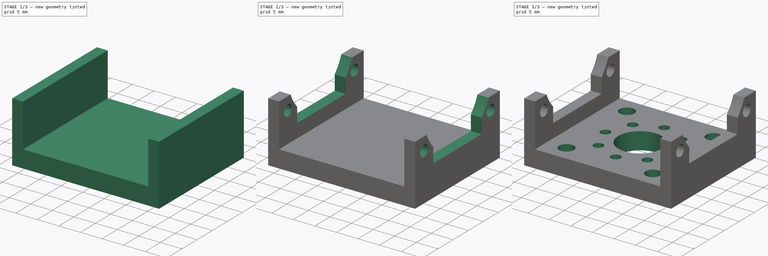
[diagram: build sequence overview — one tinted view per stage of 3, left to right]
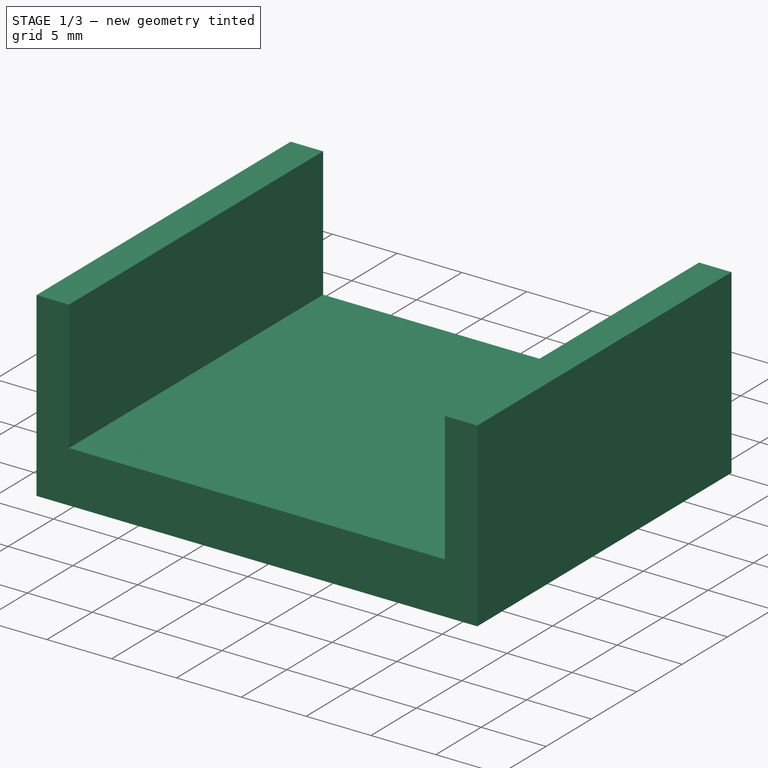
[diagram: stage 1 of 3 — iso view after this stage's code; geometry added in this stage tinted green]
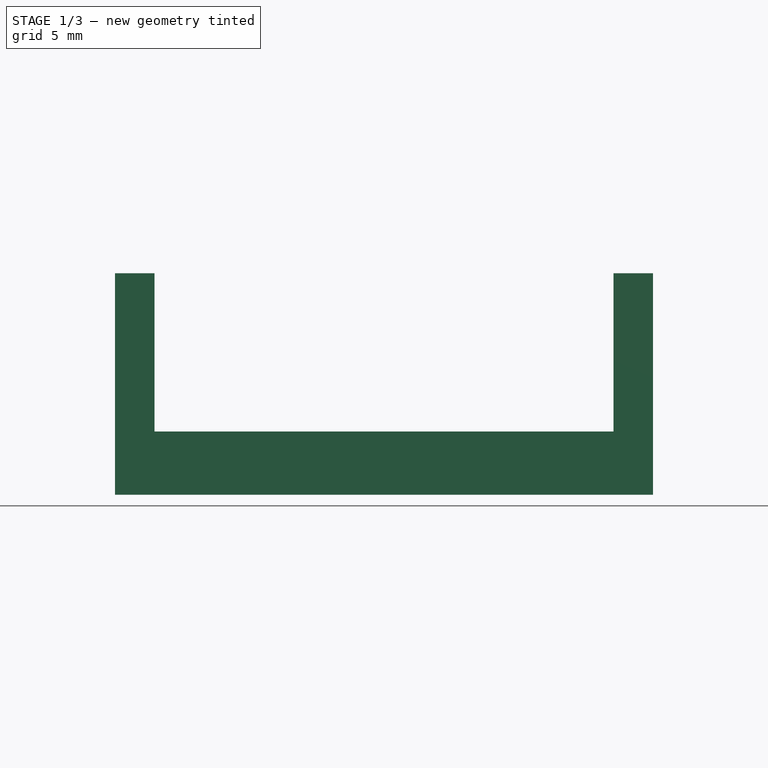
[diagram: stage 1 of 3 — front view after this stage's code; geometry added in this stage tinted green]
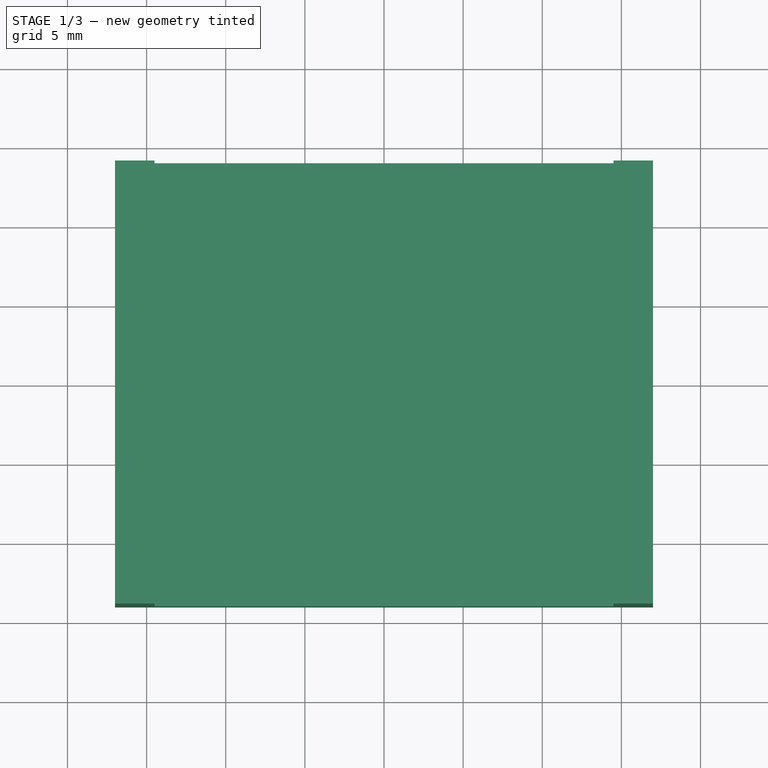
[diagram: stage 1 of 3 — top view after this stage's code; geometry added in this stage tinted green]
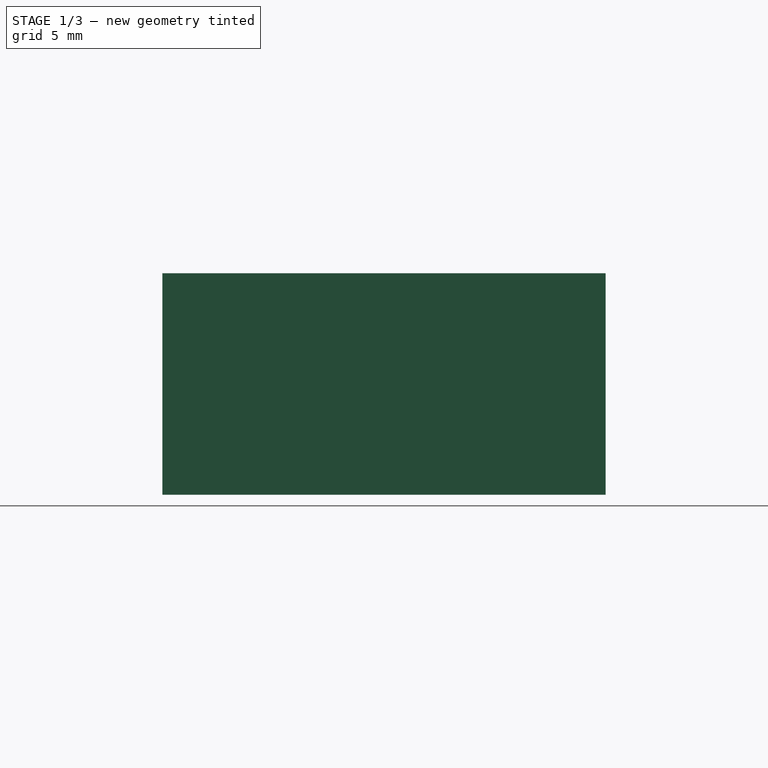
[diagram: stage 1 of 3 — right view after this stage's code; geometry added in this stage tinted green]
FCSTD DOCUMENT  (FreeCAD 0.21R33694 (Git))
Label: XL-430TTTT
License: All rights reserved
LicenseURL: http://en.wikipedia.org/wiki/All_rights_reserved
objects: Sketcher::SketchObject×6, PartDesign::Pocket×4, PartDesign::Pad×2, PartDesign::Body×1
note: 19 computed .brp shape members not serialized (recipe doc carries the construction recipe); baked Part::Feature solids carry a one-line shape summary decoded from their .brp

FEATURE [Sketcher::SketchObject] Sketch
  FullyConstrained = true
  MapMode = 5
  Support = -> [XY_Plane]
  sketch-geometry (4):
    g0: LineSegment StartX=-17 StartY=14 StartZ=0 EndX=-17 EndY=-14 EndZ=0
    g1: LineSegment StartX=17 StartY=-14 StartZ=0 EndX=-17 EndY=-14 EndZ=0
    g2: LineSegment StartX=-17 StartY=14 StartZ=0 EndX=17 EndY=14 EndZ=0
    g3: LineSegment StartX=17 StartY=14 StartZ=0 EndX=17 EndY=-14 EndZ=0
  constraints (12):
    c: Coincident(g1,g0)
    c: Horizontal(g1)
    c: Coincident(g2,g0)
    c: Horizontal(g2)
    c: Coincident(g3,g2)
    c: Coincident(g3,g1)
    c: Vertical(g0)
    c: Vertical(g3)
    c: DistanceX(g-1,g2) = 17
    c: DistanceX(g0,g-1) = 17
    c: DistanceY(g1,g-1) = 14
    c: DistanceY(g-1,g2) = 14
FEATURE [PartDesign::Pad] Pad
  Direction = (0,0,1)
  Length = 4
  Length2 = 10
  Profile = -> Sketch
  ReferenceAxis = -> Sketch [N_Axis]
  Type = 0
FEATURE [Sketcher::SketchObject] Sketch001
  FullyConstrained = true
  MapMode = 5
  Placement = pos=(0,0,4) rot=(0,0,1;0rad)
  Support = -> [Pad]
  sketch-geometry (8):
    g0: LineSegment StartX=17 StartY=-14 StartZ=0 EndX=14.5 EndY=-14 EndZ=0
    g1: LineSegment StartX=14.5 StartY=-14 StartZ=0 EndX=14.5 EndY=14 EndZ=0
    g2: LineSegment StartX=14.5 StartY=14 StartZ=0 EndX=17 EndY=14 EndZ=0
    g3: LineSegment StartX=17 StartY=14 StartZ=0 EndX=17 EndY=-14 EndZ=0
    g4: LineSegment StartX=-17 StartY=14 StartZ=0 EndX=-17 EndY=-14 EndZ=0
    g5: LineSegment StartX=-17 StartY=-14 StartZ=0 EndX=-14.5 EndY=-14 EndZ=0
    g6: LineSegment StartX=-14.5 StartY=-14 StartZ=0 EndX=-14.5 EndY=14 EndZ=0
    g7: LineSegment StartX=-14.5 StartY=14 StartZ=0 EndX=-17 EndY=14 EndZ=0
  constraints (24):
    c: Horizontal(g0)
    c: Coincident(g1,g0)
    c: Vertical(g1)
    c: Coincident(g2,g1)
    c: Horizontal(g2)
    c: Coincident(g3,g2)
    c: Coincident(g3,g0)
    c: Vertical(g3)
    c: Vertical(g4)
    c: Coincident(g5,g4)
    c: Horizontal(g5)
    c: Coincident(g6,g5)
    c: Vertical(g6)
    c: Coincident(g7,g6)
    c: Coincident(g7,g4)
    c: Horizontal(g7)
    c: DistanceX(g-1,g1) = 14.5
    c: DistanceX(g-1,g2) = 17
    c: DistanceY(g0,g-1) = 14
    c: DistanceY(g-1,g2) = 14
    c: DistanceY(g-1,g4) = 14
    c: DistanceY(g5,g-1) = 14
    c: DistanceX(g4,g-1) = 17
    c: DistanceX(g6,g-1) = 14.5
FEATURE [PartDesign::Pad] Pad001
  BaseFeature = -> Pad
  Direction = (0,0,1)
  Length = 10
  Length2 = 10
  Profile = -> Sketch001
  ReferenceAxis = -> Sketch001 [N_Axis]
  Type = 0
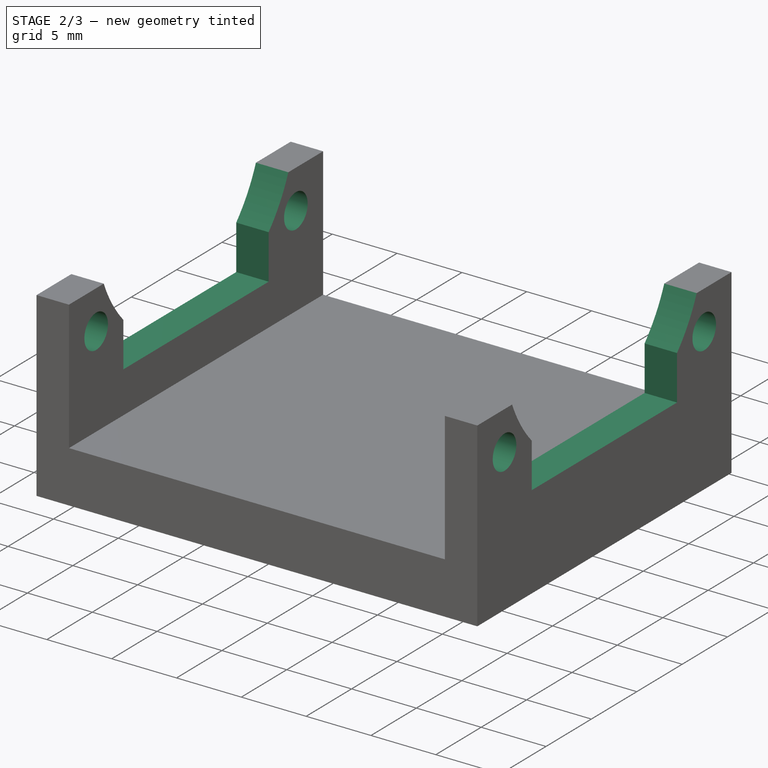
[diagram: stage 2 of 3 — iso view after this stage's code; geometry added in this stage tinted green]
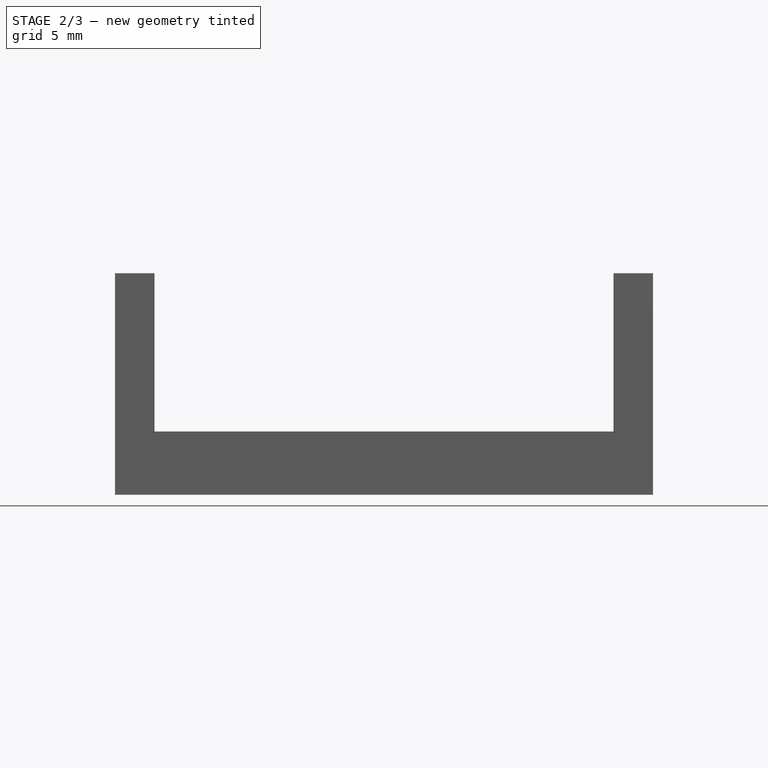
[diagram: stage 2 of 3 — front view after this stage's code; geometry added in this stage tinted green]
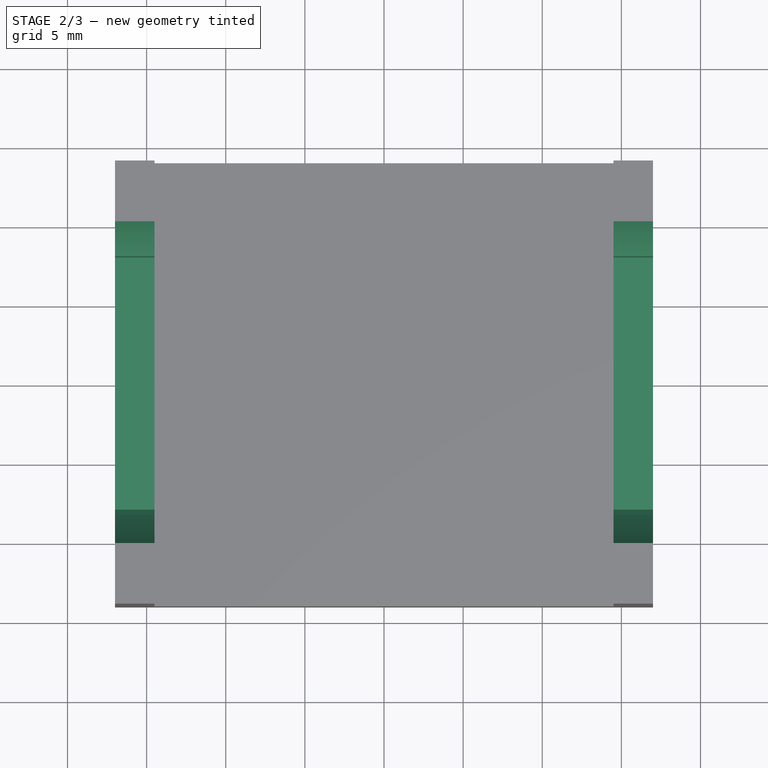
[diagram: stage 2 of 3 — top view after this stage's code; geometry added in this stage tinted green]
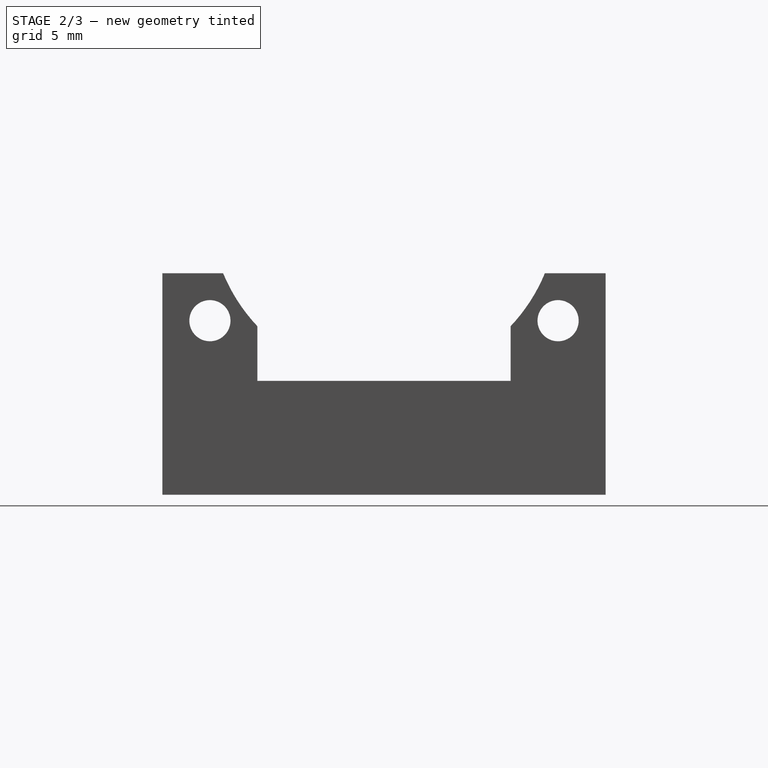
[diagram: stage 2 of 3 — right view after this stage's code; geometry added in this stage tinted green]
FEATURE [Sketcher::SketchObject] Sketch002
  FullyConstrained = true
  MapMode = 5
  Placement = pos=(17,0,0) rot=(0.57735,0.57735,0.57735;2.0944rad)
  Support = -> [Pad001]
  sketch-geometry (2):
    g0: Circle CenterX=-11 CenterY=11 CenterZ=0 NormalX=0 NormalY=0 NormalZ=1 AngleXU=0 Radius=1.3
    g1: Circle CenterX=11 CenterY=11 CenterZ=0 NormalX=0 NormalY=0 NormalZ=1 AngleXU=0 Radius=1.3
  constraints (6):
    c: Radius(g0) = 1.3
    c: Radius(g1) = 1.3
    c: DistanceY(g-1,g0) = 11
    c: DistanceY(g0,g1) = 0
    c: DistanceX(g0,g-1) = 11
    c: DistanceX(g-1,g1) = 11
FEATURE [PartDesign::Pocket] Pocket
  BaseFeature = -> Pad001
  Direction = (-1,0,0)
  Length = 100
  Length2 = 5
  Profile = -> Sketch002
  ReferenceAxis = -> Sketch002 [N_Axis]
  Type = 0
FEATURE [Sketcher::SketchObject] Sketch004
  FullyConstrained = true
  MapMode = 5
  Placement = pos=(0,0,4) rot=(0,0,1;0rad)
  sketch-geometry (11):
    g0: Circle CenterX=0 CenterY=8 CenterZ=0 NormalX=0 NormalY=0 NormalZ=1 AngleXU=0 Radius=1.1
    g1: Circle CenterX=8 CenterY=0 CenterZ=0 NormalX=0 NormalY=0 NormalZ=1 AngleXU=0 Radius=1.1
    g2: Circle CenterX=0 CenterY=-8 CenterZ=0 NormalX=0 NormalY=0 NormalZ=1 AngleXU=0 Radius=1.1
    g3: Circle CenterX=-8 CenterY=0 CenterZ=0 NormalX=0 NormalY=0 NormalZ=1 AngleXU=0 Radius=1.1
    g4: Circle CenterX=0 CenterY=0 CenterZ=0 NormalX=0 NormalY=0 NormalZ=1 AngleXU=0 Radius=5
    g5: Circle CenterX=0 CenterY=0 CenterZ=0 NormalX=0 NormalY=0 NormalZ=1 AngleXU=0 Radius=8
    g6: Circle CenterX=5.65685 CenterY=5.65685 CenterZ=0 NormalX=0 NormalY=0 NormalZ=1 AngleXU=0 Radius=1.1
    g7: Circle CenterX=-5.65685 CenterY=5.65685 CenterZ=0 NormalX=0 NormalY=0 NormalZ=1 AngleXU=0 Radius=1.1
    g8: Circle CenterX=-5.65685 CenterY=-5.65685 CenterZ=0 NormalX=0 NormalY=0 NormalZ=1 AngleXU=0 Radius=1.1
    g9: Circle CenterX=5.65685 CenterY=-5.65685 CenterZ=0 NormalX=0 NormalY=0 NormalZ=1 AngleXU=0 Radius=1.1
    g10: LineSegment StartX=0 StartY=0 StartZ=0 EndX=5.65685 EndY=5.65685 EndZ=0
  constraints (30):
    c: PointOnObject(g0,g-2)
    c: PointOnObject(g1,g-1)
    c: PointOnObject(g2,g-2)
    c: PointOnObject(g3,g-1)
    c: Radius(g0) = 1.1
    c: Radius(g1) = 1.1
    c: Radius(g2) = 1.1
    c: Radius(g3) = 1.1
    c: DistanceY(g-1,g0) = 8
    c: DistanceY(g2,g-1) = 8
    c: DistanceX(g-1,g1) = 8
    c: DistanceX(g3,g-1) = 8
    c: Coincident(g4,g-1)
    c: Radius(g4) = 5
    c: Coincident(g5,g4)
    c: PointOnObject(g6,g5)
    c: PointOnObject(g7,g5)
    c: PointOnObject(g8,g5)
    c: PointOnObject(g9,g5)
    c: Radius(g6) = 1.1
    c: Radius(g7) = 1.1
    c: Radius(g5) = 8
    c: Radius(g9) = 1.1
    c: Radius(g8) = 1.1
    c: DistanceX(g7,g8) = 0
    c: DistanceX(g6,g9) = 0
    c: DistanceY(g6,g7) = 0
    c: Coincident(g10,g4)
    c: Coincident(g10,g6)
    c: Angle(g-1,g10) = 0.785398
FEATURE [Sketcher::SketchObject] Sketch006
  FullyConstrained = true
  MapMode = 5
  Placement = pos=(-20,0,0) rot=(0.57735,-0.57735,-0.57735;2.0944rad)
  sketch-geometry (4):
    g0: ArcOfCircle CenterX=0 CenterY=18.2 CenterZ=0 NormalX=0 NormalY=0 NormalZ=1 AngleXU=0 Radius=11 StartAngle=5.52673 EndAngle=10.1812
    g1: LineSegment StartX=-8 StartY=7.2 StartZ=0 EndX=8 EndY=7.2 EndZ=0
    g2: LineSegment StartX=8 StartY=7.2 StartZ=0 EndX=8 EndY=10.6502 EndZ=0
    g3: LineSegment StartX=-8 StartY=10.6502 StartZ=0 EndX=-8 EndY=7.2 EndZ=0
  constraints (13):
    c: Radius(g0) = 11
    c: DistanceX(g0,g-1) = 0
    c: DistanceY(g-1,g0) = 18.2
    c: Horizontal(g1)
    c: Coincident(g2,g1)
    c: Vertical(g2)
    c: Coincident(g3,g1)
    c: Vertical(g3)
    c: DistanceY(g-1,g1) = 7.2
    c: DistanceX(g-1,g1) = 8
    c: DistanceX(g1,g-1) = 8
    c: Coincident(g0,g3)
    c: Coincident(g0,g2)
FEATURE [PartDesign::Pocket] Pocket003
  BaseFeature = -> Pocket
  Direction = (1,0,0)
  Length = 100
  Length2 = 5
  Profile = -> Sketch006
  ReferenceAxis = -> Sketch006 [N_Axis]
  Type = 0
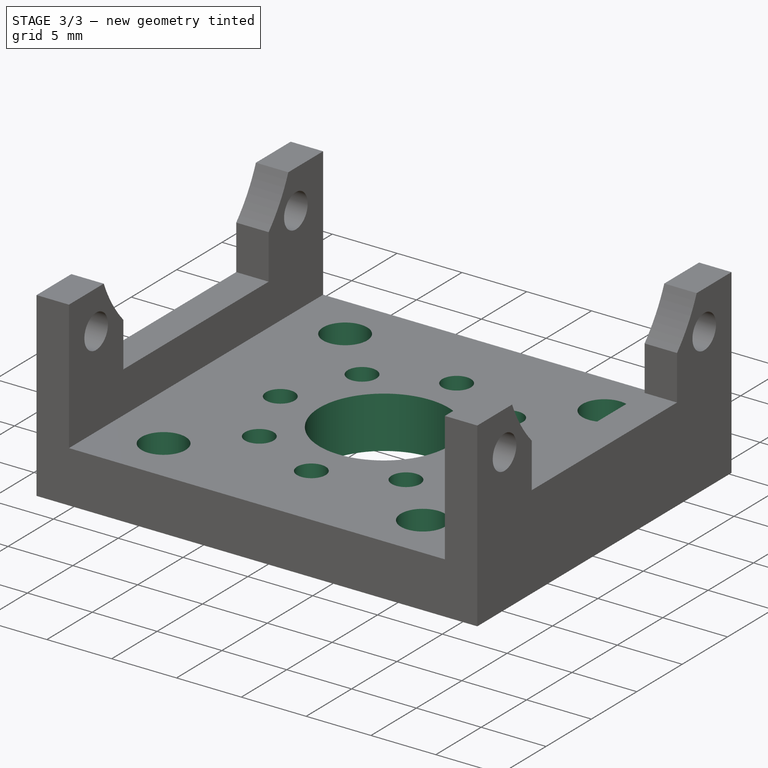
[diagram: stage 3 of 3 — iso view after this stage's code; geometry added in this stage tinted green]
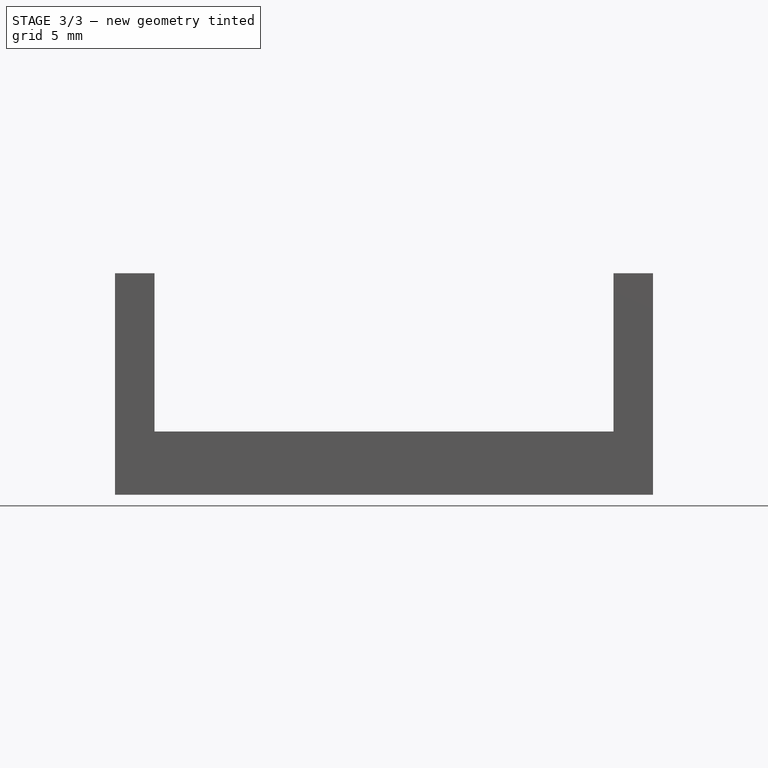
[diagram: stage 3 of 3 — front view after this stage's code; geometry added in this stage tinted green]
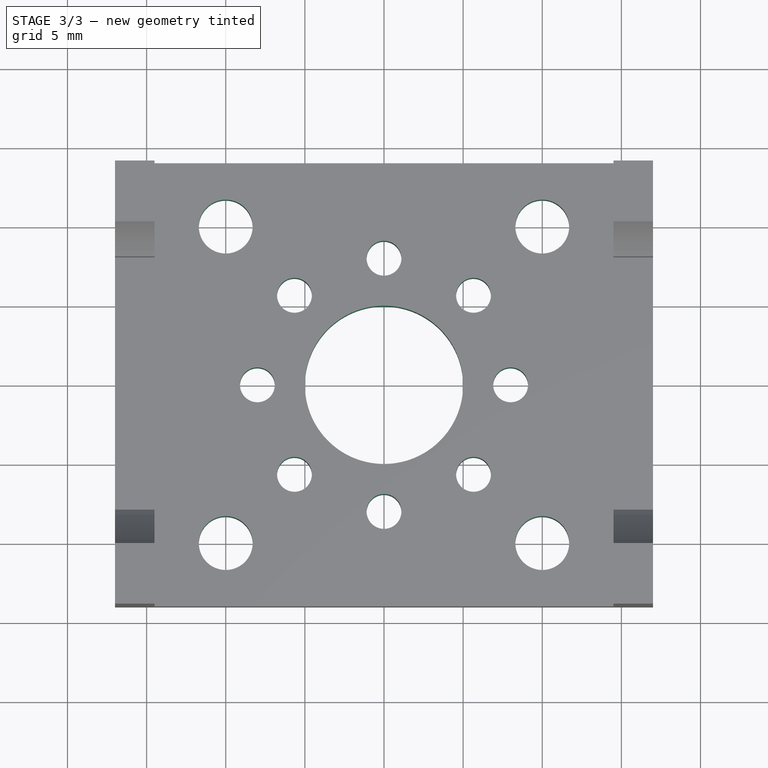
[diagram: stage 3 of 3 — top view after this stage's code; geometry added in this stage tinted green]
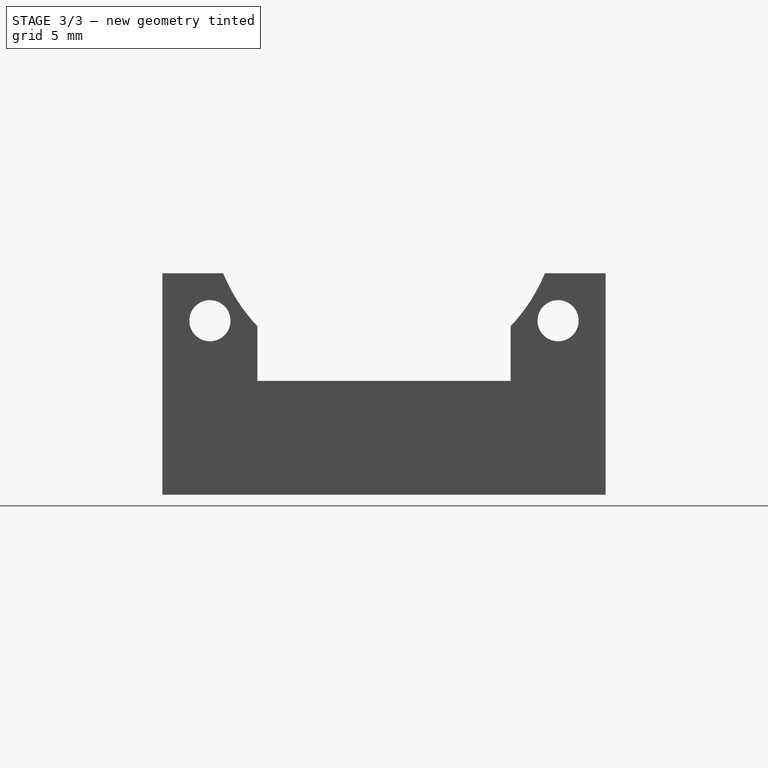
[diagram: stage 3 of 3 — right view after this stage's code; geometry added in this stage tinted green]
FEATURE [PartDesign::Pocket] Pocket007
  BaseFeature = -> Pocket003
  Direction = (0,0,-1)
  Length = 5
  Length2 = 5
  Profile = -> Sketch004
  ReferenceAxis = -> Sketch004 [N_Axis]
  Type = 0
FEATURE [Sketcher::SketchObject] Sketch008
  FullyConstrained = true
  MapMode = 5
  Placement = pos=(0,0,0) rot=(1,0,0;3.14159rad)
  sketch-geometry (4):
    g0: Circle CenterX=10 CenterY=10 CenterZ=0 NormalX=0 NormalY=0 NormalZ=1 AngleXU=0 Radius=1.7
    g1: Circle CenterX=-10 CenterY=10 CenterZ=0 NormalX=0 NormalY=0 NormalZ=1 AngleXU=0 Radius=1.7
    g2: Circle CenterX=-10 CenterY=-10 CenterZ=0 NormalX=0 NormalY=0 NormalZ=1 AngleXU=0 Radius=1.7
    g3: Circle CenterX=10 CenterY=-10 CenterZ=0 NormalX=0 NormalY=0 NormalZ=1 AngleXU=0 Radius=1.7
  constraints (12):
    c: DistanceX(g3,g0) = 0
    c: DistanceX(g1,g2) = 0
    c: DistanceY(g1,g0) = 0
    c: DistanceY(g2,g3) = 0
    c: Radius(g0) = 1.7
    c: Radius(g1) = 1.7
    c: Radius(g2) = 1.7
    c: Radius(g3) = 1.7
    c: DistanceY(g-1,g1) = 10
    c: DistanceY(g3,g-1) = 10
    c: DistanceX(g1,g-1) = 10
    c: DistanceX(g-1,g0) = 10
FEATURE [PartDesign::Pocket] Pocket009
  BaseFeature = -> Pocket007
  Direction = (0,0,1)
  Length = 10
  Length2 = 5
  Profile = -> Sketch008
  ReferenceAxis = -> Sketch008 [N_Axis]
  Type = 0
FEATURE [PartDesign::Body] Body
  Group = -> [Sketch,Pad,Sketch001,Pad001,Sketch002,Pocket,Sketch004,Sketch006,Pocket003,Pocket007,Sketch008,Pocket009]
  Origin = -> Origin
  Tip = -> Pocket009
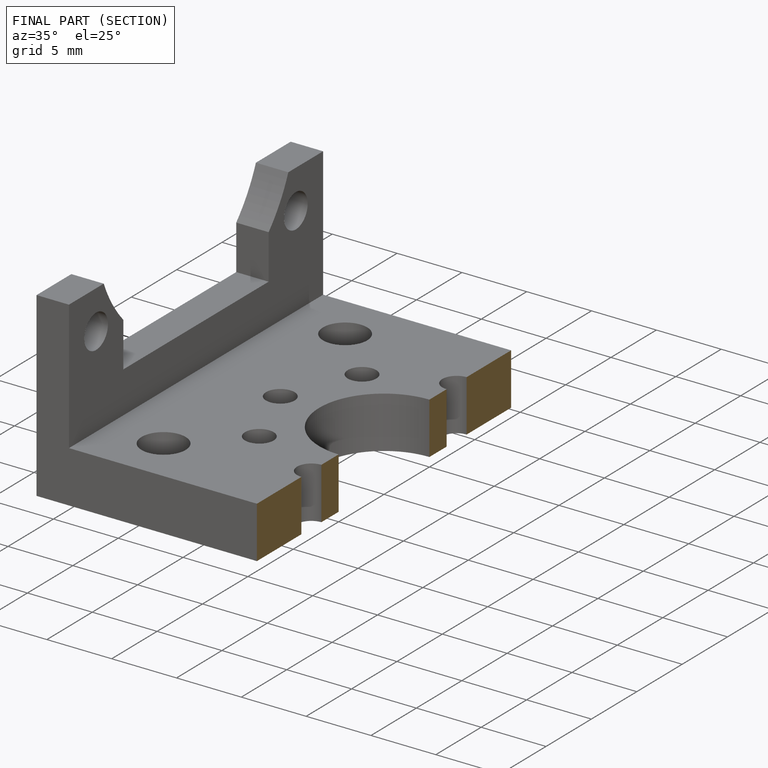
[diagram: finished part — half-section view (interior)]
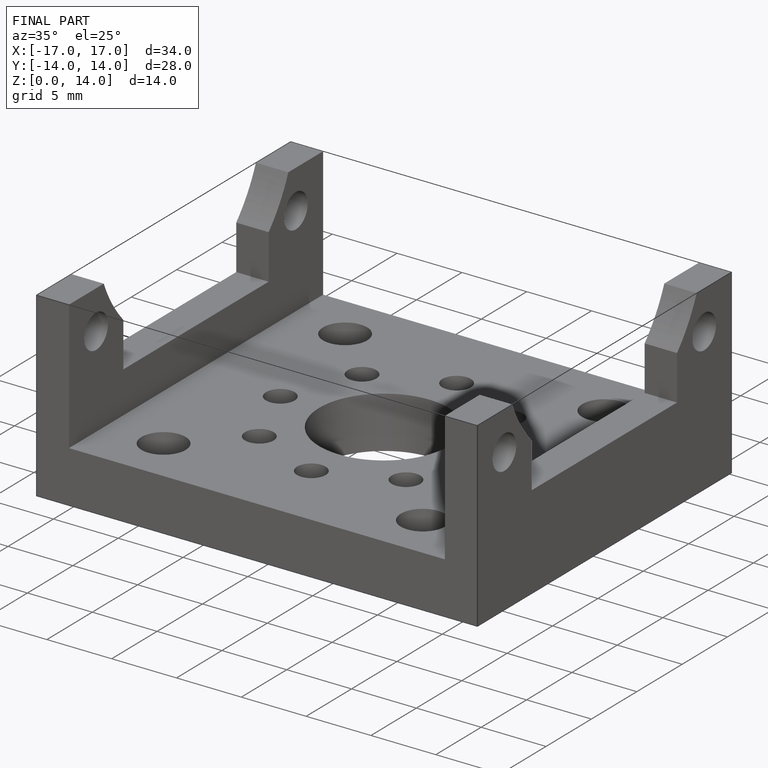
[diagram: finished part — iso view with bounding-box wireframe]
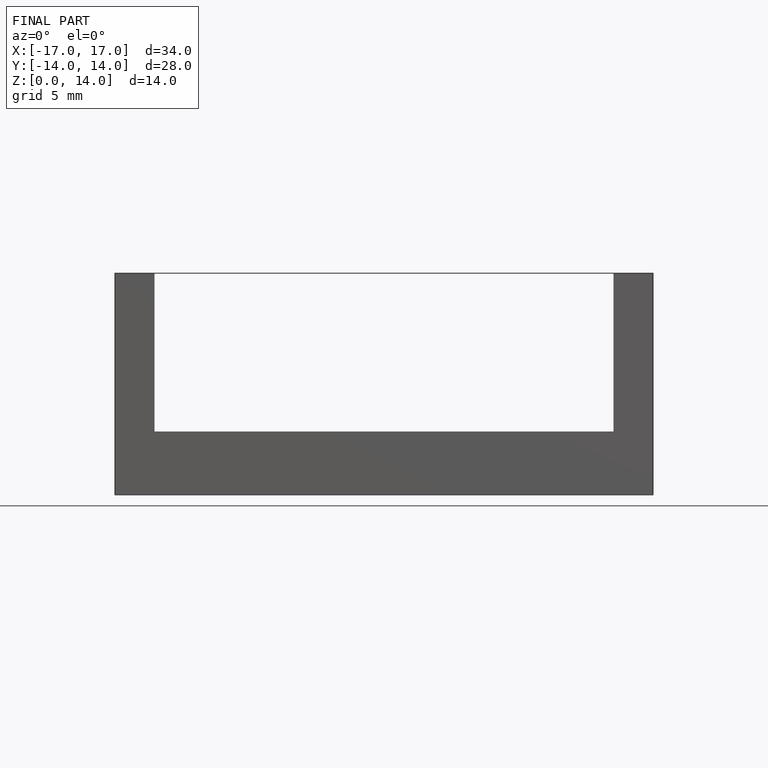
[diagram: finished part — front view with bounding-box wireframe]
